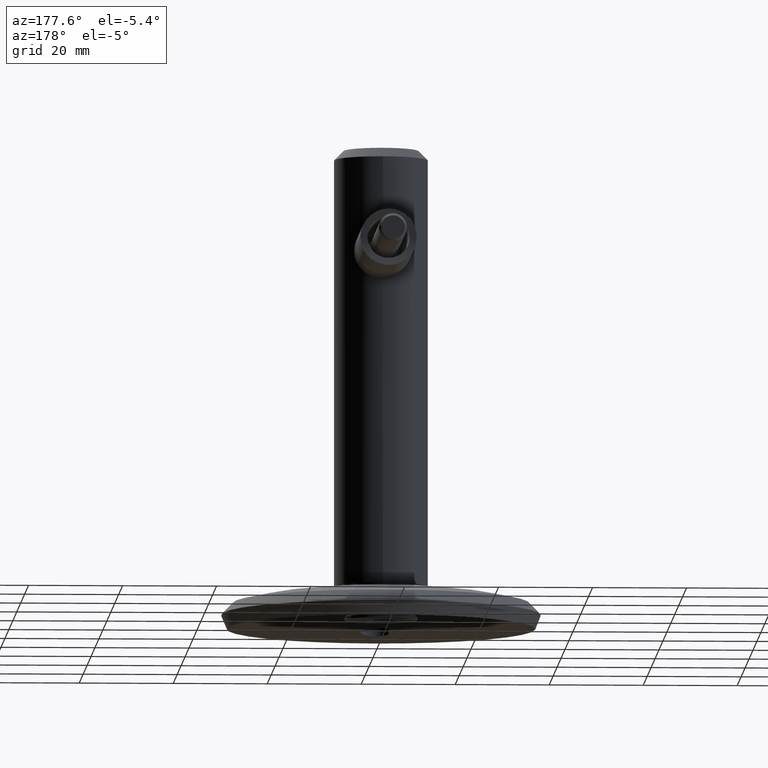
[diagram: clean part render]
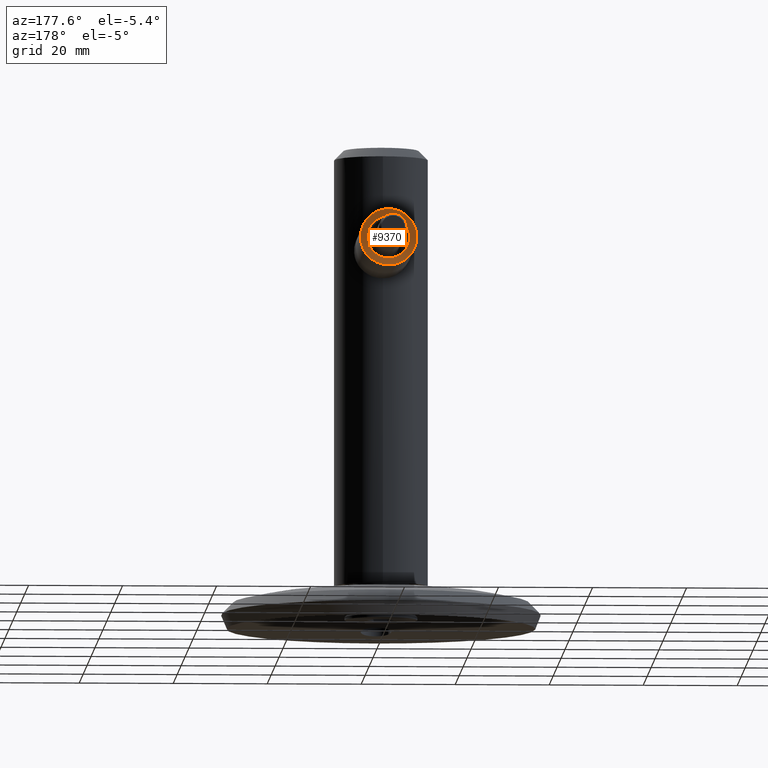
[diagram: same view with one face highlighted and labeled with its STEP entity id]
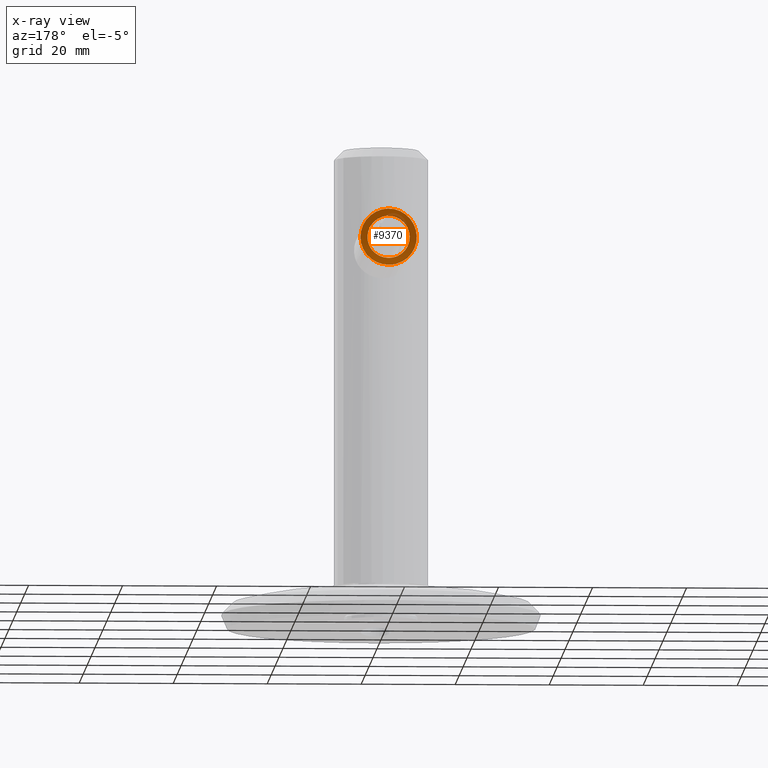
[diagram: x-ray of the same camera — body ghosted, the highlighted face saturated]
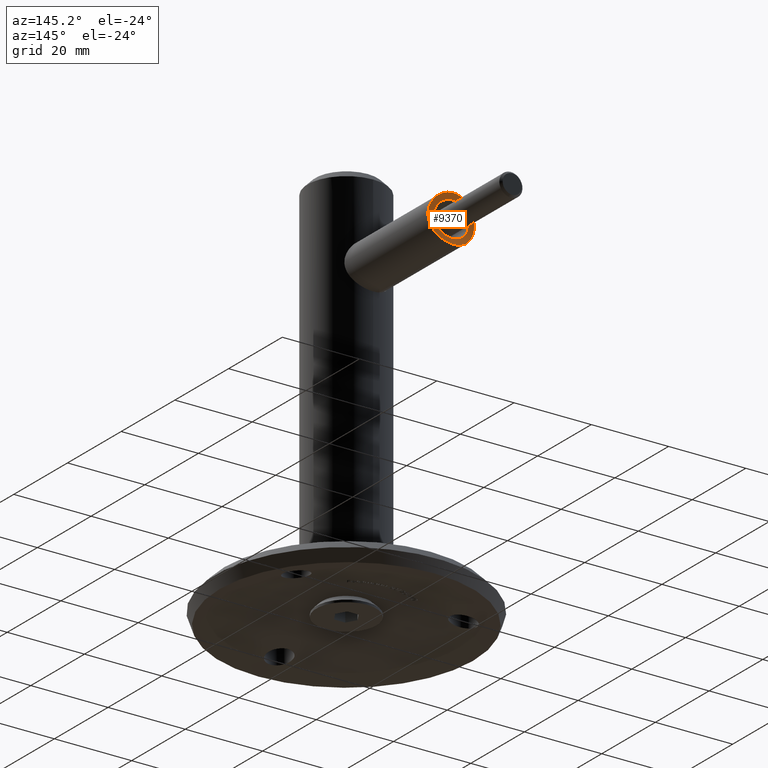
[diagram: same view with one face highlighted and labeled with its STEP entity id]
A machine part, auxiliary view. The second image highlights one B-rep face of the part: STEP entity #9370.
The next image is the same camera in x-ray: the body ghosted, the highlighted face saturated — about 6% of this face is hidden behind the body in this view.
A second angle (auxiliary view) of the same face is appended — the face is thin or edge-on in the first view.
In plain terms, the highlighted cylindrical surface (partial cylindrical patch) has radius 21.2 mm, axis along (1, 0, 0).
Its self-contained STEP definition (entity closure, byte-faithful):
#38 = CARTESIAN_POINT ( 'NONE',  ( -5.386833150024099126, 39.16582833236981998, 2.671900972921422035 ) ) ;
#90 = CARTESIAN_POINT ( 'NONE',  ( 2.664835474612384125, 39.69604372673916259, 5.389994015634830049 ) ) ;
#139 = CARTESIAN_POINT ( 'NONE',  ( 1.567503375131521270, 39.81010397402161516, 5.805055781419407701 ) ) ;
#313 = CARTESIAN_POINT ( 'NONE',  ( -1.946153451610276974, 39.77700943093032038, -5.689094273853587680 ) ) ;
#477 = CARTESIAN_POINT ( 'NONE',  ( -4.065758146820641628E-16, 39.86677595657786100, -6.000000000000005329 ) ) ;
#527 = VERTEX_POINT ( 'NONE', #1968 ) ;
#633 = CARTESIAN_POINT ( 'NONE',  ( -4.470056951583079474, 39.00641058752037793, 0.5956160367557489232 ) ) ;
#682 = CARTESIAN_POINT ( 'NONE',  ( 4.044173108522785220, 39.09234638801572714, 1.995483486846971743 ) ) ;
#731 = CARTESIAN_POINT ( 'NONE',  ( 1.453675787586462542, 39.43392683436366042, 4.268893366010395596 ) ) ;
#784 = CARTESIAN_POINT ( 'NONE',  ( 4.355573608413233266, 39.03026101547329318, 1.168656094243877952 ) ) ;
#826 = CARTESIAN_POINT ( 'NONE',  ( -4.040981637617305999, 39.09296058201051238, 2.001997529815400689 ) ) ;
#896 = CARTESIAN_POINT ( 'NONE',  ( 4.765923523361857761, 39.31678615650366737, -3.666256703641651793 ) ) ;
#995 = CARTESIAN_POINT ( 'NONE',  ( -2.977584140746407648, 39.27120856661733939, -3.386661157371494202 ) ) ;
#1007 = CARTESIAN_POINT ( 'NONE',  ( 3.657769163878172858, 39.54093268571426023, -4.760172760344627996 ) ) ;
#1052 = CARTESIAN_POINT ( 'NONE',  ( 5.844901919903467302, 39.04340544364730192, -1.369747224913459016 ) ) ;
#1106 = CARTESIAN_POINT ( 'NONE',  ( 3.011013073439819721, 39.64755117411137775, -5.204515888465341078 ) ) ;
#1156 = CARTESIAN_POINT ( 'NONE',  ( -5.999927452249055548, 39.00002053238108601, 0.1999779353303321183 ) ) ;
#1189 = CARTESIAN_POINT ( 'NONE',  ( -3.501205410230786352, 39.56816536352720703, -4.876473460912020386 ) ) ;
#1202 = CARTESIAN_POINT ( 'NONE',  ( -3.661968182206890798, 39.54213979777393462, 4.768948702656751415 ) ) ;
#1251 = CARTESIAN_POINT ( 'NONE',  ( 3.964897188831766339, 39.48559125265645520, 4.520324241424016343 ) ) ;
#1386 = ORIENTED_EDGE ( 'NONE', *, *, #14213, .T. ) ;
#1842 = CARTESIAN_POINT ( 'NONE',  ( -2.745546025396499612, 39.30337448249075294, 3.577524047811153629 ) ) ;
#1887 = CARTESIAN_POINT ( 'NONE',  ( 4.043481022426031579, 39.09247524003055219, -1.996518695419063461 ) ) ;
#1933 = CARTESIAN_POINT ( 'NONE',  ( -2.255951921952016548, 39.36204774658489214, 3.904789650682687796 ) ) ;
#1968 = CARTESIAN_POINT ( 'NONE',  ( 0.000000000000000000, 39.86677595657786100, -6.000000000000005329 ) ) ;
#2147 = CARTESIAN_POINT ( 'NONE',  ( 3.498965885800042308, 39.56854342216529830, -4.878066632430919647 ) ) ;
#2195 = CARTESIAN_POINT ( 'NONE',  ( 5.961138535017029838, 39.01109649585257699, -0.7881440351434979563 ) ) ;
#2249 = CARTESIAN_POINT ( 'NONE',  ( 4.761943770666029252, 39.31695757805032798, 3.655430837228719199 ) ) ;
#2298 = CARTESIAN_POINT ( 'NONE',  ( -3.962704692263843587, 39.48476583380182348, -4.509470939277636425 ) ) ;
#2347 = CARTESIAN_POINT ( 'NONE',  ( -5.201538773815626016, 39.21305920851091287, 3.015902784871267173 ) ) ;
#2405 = CARTESIAN_POINT ( 'NONE',  ( -5.206670629820550289, 39.21181039528246970, -3.007664344769980236 ) ) ;
#2445 = CARTESIAN_POINT ( 'NONE',  ( -3.012515206503591614, 39.64733855584797340, -5.203698981399575985 ) ) ;
#2819 = DIRECTION ( 'NONE',  ( 0.000000000000000000, 0.000000000000000000, -1.000000000000000000 ) ) ;
#3003 = CARTESIAN_POINT ( 'NONE',  ( -1.168618958941590291, 39.45221145695396103, 4.355775664247618195 ) ) ;
#3045 = CARTESIAN_POINT ( 'NONE',  ( -0.5852047606091206333, 39.47688431322175973, 4.471687298616700446 ) ) ;
#3091 = CARTESIAN_POINT ( 'NONE',  ( -3.386778113024775827, 39.20909344270816632, 2.977546186794058691 ) ) ;
#3143 = CARTESIAN_POINT ( 'NONE',  ( 3.389231286189790193, 39.20869040857512289, -2.974680724035942081 ) ) ;
#3247 = VERTEX_POINT ( 'NONE', #12264 ) ;
#3372 = CARTESIAN_POINT ( 'NONE',  ( 1.367236165430297135, 39.82176537013745588, -5.845438576508479755 ) ) ;
#3472 = CARTESIAN_POINT ( 'NONE',  ( -4.876396344112010617, 39.29047679053014264, 3.501239423540820184 ) ) ;
#3527 = CARTESIAN_POINT ( 'NONE',  ( -5.961545238840422201, 39.01097978293365998, -0.7842338684864926801 ) ) ;
#3580 = CARTESIAN_POINT ( 'NONE',  ( -0.3901985286802360786, 39.86682594959467707, 6.000169419885856392 ) ) ;
#4174 = AXIS2_PLACEMENT_3D ( 'NONE', #11864, #6354, #2819 ) ;
#4175 = CARTESIAN_POINT ( 'NONE',  ( -8.131516293641283255E-17, 39.48309868730365224, -4.500000000000003553 ) ) ;
#4227 = CARTESIAN_POINT ( 'NONE',  ( 1.453748758589291867, 39.43392733268055395, -4.268901780199063190 ) ) ;
#4282 = B_SPLINE_CURVE_WITH_KNOTS ( 'NONE', 3,
 ( #4175, #5253, #12274, #12228, #4227, #5301, #6486, #9967, #8866, #3143, #13411, #8811, #1887, #14591, #6583, #7644, #13362, #5349, #6532, #784, #14640, #682, #13464, #7692, #5452, #7787, #5399, #14683, #13516, #731, #6440, #6631, #8910, #10023, #3045, #3003, #12324, #7735, #1933, #1842, #11134, #3091, #13566, #14736, #826, #8960, #10132, #633, #13763, #13716, #5714, #6780, #11395, #4322, #4379, #14888, #5502, #995, #7837, #5607, #9212, #7887, #9111, #4486, #14834, #13612 ),
 .UNSPECIFIED., .T., .F.,
 ( 4, 2, 2, 2, 2, 2, 2, 2, 2, 2, 2, 2, 2, 2, 2, 2, 2, 2, 2, 2, 2, 2, 2, 2, 2, 2, 2, 2, 2, 2, 2, 2, 4 ),
 ( 0.000000000000000000, 0.0008817094677355862085, 0.001763418935471172417, 0.002645128403206759276, 0.003526837870942346569, 0.004408547338677933428, 0.005290256806413520287, 0.006171966274149107146, 0.007053675741884694872, 0.007935385209620282598, 0.008817094677355868590, 0.009698804145091454582, 0.01058051361282704057, 0.01146222308056262656, 0.01234393254829821256, 0.01322564201603380028, 0.01410735148376938627, 0.01498906095150497227, 0.01587077041924055826, 0.01675247988697614598, 0.01763418935471173024, 0.01851589882244731797, 0.01939760829018290569, 0.02027931775791848995, 0.02116102722565407421, 0.02204273669338966193, 0.02292444616112524619, 0.02380615562886083392, 0.02468786509659642164, 0.02556957456433200590, 0.02645128403206759363, 0.02733299349980317788, 0.02821470296753876561 ),
 .UNSPECIFIED. ) ;
#4322 = CARTESIAN_POINT ( 'NONE',  ( -4.044557272946057935, 39.09227034951176449, -1.994516712157173854 ) ) ;
#4379 = CARTESIAN_POINT ( 'NONE',  ( -3.906554296346622213, 39.11860398307728559, -2.252921507247926058 ) ) ;
#4391 = CARTESIAN_POINT ( 'NONE',  ( 6.000251675647406024, 38.99992877105675149, 0.3897490360429158862 ) ) ;
#4486 = CARTESIAN_POINT ( 'NONE',  ( -0.5924246279008271721, 39.47665958855392176, -4.470647371571142337 ) ) ;
#4545 = CARTESIAN_POINT ( 'NONE',  ( 5.692795006294950610, 39.08539385714366432, 1.935948924808809091 ) ) ;
#4649 = CARTESIAN_POINT ( 'NONE',  ( 1.941559548024174298, 39.77745049638600250, 5.690670445282177248 ) ) ;
#4698 = CARTESIAN_POINT ( 'NONE',  ( -5.807924154963832741, 39.05368734000375497, -1.556618580580950040 ) ) ;
#4749 = CARTESIAN_POINT ( 'NONE',  ( -5.989922815101413001, 39.00285822588044482, 0.3999026621498756318 ) ) ;
#5086 = CARTESIAN_POINT ( 'NONE',  ( -0.7909221023866750411, 39.85505131491337494, -5.960665220070608505 ) ) ;
#5253 = CARTESIAN_POINT ( 'NONE',  ( 0.2982032509098329620, 39.48309868730363803, -4.500000000000003553 ) ) ;
#5301 = CARTESIAN_POINT ( 'NONE',  ( 1.998257267680176863, 39.38871890826690247, -4.042755960263986204 ) ) ;
#5315 = FACE_BOUND ( 'NONE', #6235, .T. ) ;
#5349 = CARTESIAN_POINT ( 'NONE',  ( 4.500175659676059148, 38.99996271375440671, 0.2917156617902770810 ) ) ;
#5399 = CARTESIAN_POINT ( 'NONE',  ( 2.747271619917183383, 39.30312980005171397, 3.576060110211404908 ) ) ;
#5452 = CARTESIAN_POINT ( 'NONE',  ( 3.391399716574960088, 39.20836010529126270, 2.972497360413885570 ) ) ;
#5502 = CARTESIAN_POINT ( 'NONE',  ( -3.390774033795230125, 39.20843855033488978, -2.972899689160968695 ) ) ;
#5571 = CARTESIAN_POINT ( 'NONE',  ( 5.806750453888356311, 39.05401038843587713, 1.560857445958442113 ) ) ;
#5607 = CARTESIAN_POINT ( 'NONE',  ( -2.258545998574227998, 39.36178198021350738, -3.903425397464452384 ) ) ;
#5621 = CARTESIAN_POINT ( 'NONE',  ( 0.3985892450475845838, 39.86677595657786100, -6.000000000000006217 ) ) ;
#5714 = CARTESIAN_POINT ( 'NONE',  ( -4.471259367037887067, 39.00615588852156179, -0.5868292498254027434 ) ) ;
#5725 = CARTESIAN_POINT ( 'NONE',  ( 5.195449595516763885, 39.21370301654191337, 3.007612715470314946 ) ) ;
#5822 = CARTESIAN_POINT ( 'NONE',  ( -1.562611765488401527, 39.81053209538111304, 5.806559744401100787 ) ) ;
#5876 = CARTESIAN_POINT ( 'NONE',  ( -2.660947525847901840, 39.69654741239466489, 5.391900104547988626 ) ) ;
#5931 = CARTESIAN_POINT ( 'NONE',  ( -4.768297944891230600, 39.31624197785775010, -3.663167832216072117 ) ) ;
#6235 = EDGE_LOOP ( 'NONE', ( #1386 ) ) ;
#6354 = DIRECTION ( 'NONE',  ( 1.000000000000000000, -0.000000000000000000, -0.000000000000000000 ) ) ;
#6440 = CARTESIAN_POINT ( 'NONE',  ( 1.173196981791356341, 39.45191878165975652, 4.354381214337445627 ) ) ;
#6486 = CARTESIAN_POINT ( 'NONE',  ( 2.256375760188435553, 39.36199552170818805, -3.904494616226115600 ) ) ;
#6532 = CARTESIAN_POINT ( 'NONE',  ( 4.470756276366601334, 39.00626297942346810, 0.5908611023310651467 ) ) ;
#6583 = CARTESIAN_POINT ( 'NONE',  ( 4.355089436769809197, 39.03036162051250102, -1.170906576578577107 ) ) ;
#6631 = CARTESIAN_POINT ( 'NONE',  ( 0.5946852359434440238, 39.47658006952983101, 4.470276992313794828 ) ) ;
#6780 = CARTESIAN_POINT ( 'NONE',  ( -4.356816501605227820, 39.03000430035508828, -1.163906726123315138 ) ) ;
#6790 = CARTESIAN_POINT ( 'NONE',  ( 0.7900868887068148716, 39.85505751095912075, -5.960680350720851450 ) ) ;
#6944 = CARTESIAN_POINT ( 'NONE',  ( -5.691438736089949657, 39.08576590913602189, 1.940245167145599803 ) ) ;
#6998 = CARTESIAN_POINT ( 'NONE',  ( -1.937831060823399953, 39.77780336258718563, 5.691927551581161815 ) ) ;
#7049 = CARTESIAN_POINT ( 'NONE',  ( -5.691337181999868378, 39.08577921318724435, -1.939596555399011990 ) ) ;
#7100 = CARTESIAN_POINT ( 'NONE',  ( -4.519492598268759487, 39.37229378453882589, -3.965547715450232769 ) ) ;
#7644 = CARTESIAN_POINT ( 'NONE',  ( 4.471033629697963363, 39.00620546400676147, -0.5896477723597348675 ) ) ;
#7692 = CARTESIAN_POINT ( 'NONE',  ( 3.578368755296395420, 39.17693876212043591, 2.744252924424513296 ) ) ;
#7735 = CARTESIAN_POINT ( 'NONE',  ( -1.993030096515674199, 39.38920328412472571, 4.045224293864610132 ) ) ;
#7787 = CARTESIAN_POINT ( 'NONE',  ( 2.973533953015905507, 39.27180711095002863, 3.390490882676703954 ) ) ;
#7837 = CARTESIAN_POINT ( 'NONE',  ( -2.750775209726284753, 39.30270198166939366, -3.573652977948684750 ) ) ;
#7846 = CARTESIAN_POINT ( 'NONE',  ( 5.681128042610279927, 39.08810395496703194, -1.939990309476925079 ) ) ;
#7887 = CARTESIAN_POINT ( 'NONE',  ( -1.458827201416411867, 39.43354978585517046, -4.267053163971541885 ) ) ;
#7903 = CARTESIAN_POINT ( 'NONE',  ( 5.796107268626355058, 39.05687349871904246, -1.563303799001977357 ) ) ;
#8002 = CARTESIAN_POINT ( 'NONE',  ( 5.614775507649731878, 39.10591392659193843, -2.124247630394300757 ) ) ;
#8054 = CARTESIAN_POINT ( 'NONE',  ( 5.094890828735287869, 39.23844391682747812, 3.174911366692543258 ) ) ;
#8108 = CARTESIAN_POINT ( 'NONE',  ( -5.921367764825414604, 39.02215249593837854, 0.9878383440947947625 ) ) ;
#8159 = CARTESIAN_POINT ( 'NONE',  ( -5.805718344292519539, 39.05429404609162702, 1.564390522937072925 ) ) ;
#8208 = CARTESIAN_POINT ( 'NONE',  ( 0.7893478687381466630, 39.85241174253837926, 5.951139941781342202 ) ) ;
#8811 = CARTESIAN_POINT ( 'NONE',  ( 3.904223466443575763, 39.11904290633914627, -2.257104260678528984 ) ) ;
#8866 = CARTESIAN_POINT ( 'NONE',  ( 2.975482920270869247, 39.27151012947702213, -3.388527041712230403 ) ) ;
#8892 = CARTESIAN_POINT ( 'NONE',  ( -2.669010410636402764, 39.69549690679677667, -5.387920780962053513 ) ) ;
#8910 = CARTESIAN_POINT ( 'NONE',  ( 0.2959807551140146709, 39.48307226268449455, 4.499878347494208342 ) ) ;
#8960 = CARTESIAN_POINT ( 'NONE',  ( -4.268306002802728649, 39.04826209195650932, 1.455709645288303600 ) ) ;
#9111 = CARTESIAN_POINT ( 'NONE',  ( -1.173051440158819680, 39.45194176434362276, -4.354492528345951463 ) ) ;
#9122 = CARTESIAN_POINT ( 'NONE',  ( 2.667242644977275923, 39.69575009362240792, -5.388893713550922726 ) ) ;
#9174 = CARTESIAN_POINT ( 'NONE',  ( 2.123116885718334679, 39.75702698885454112, -5.615243929284035929 ) ) ;
#9212 = CARTESIAN_POINT ( 'NONE',  ( -2.000044702424379039, 39.38852584498976483, -4.041749707250088086 ) ) ;
#9224 = CARTESIAN_POINT ( 'NONE',  ( 4.878137923113206931, 39.29007052933531696, 3.498820536433562278 ) ) ;
#9275 = CARTESIAN_POINT ( 'NONE',  ( -4.106992825656436530, 39.45658482113101684, -4.378407865575820068 ) ) ;
#9325 = CARTESIAN_POINT ( 'NONE',  ( 0.3956218705733524077, 39.86387956119002496, 5.990210346896905236 ) ) ;
#9368 = CARTESIAN_POINT ( 'NONE',  ( -5.390943988667642905, 39.16476105189169488, -2.662907551526740413 ) ) ;
#9370 = ADVANCED_FACE ( 'NONE', ( #5315, #13848 ), #13833, .F. ) ;
#9806 = CARTESIAN_POINT ( 'NONE',  ( -0.3985892450475783666, 39.86677595657786100, -6.000000000000004441 ) ) ;
#9967 = CARTESIAN_POINT ( 'NONE',  ( 2.744874029177291064, 39.30345644604841482, -3.577984955705190373 ) ) ;
#10023 = CARTESIAN_POINT ( 'NONE',  ( -0.2922699905332738490, 39.48312494575688447, 4.500120887518330726 ) ) ;
#10132 = CARTESIAN_POINT ( 'NONE',  ( -4.354799264265114545, 39.03042041828852859, 1.171277499823530244 ) ) ;
#10299 = CARTESIAN_POINT ( 'NONE',  ( 4.518240597640136080, 39.37256728680340956, -3.966981472210573401 ) ) ;
#10348 = CARTESIAN_POINT ( 'NONE',  ( 1.557924483062337551, 39.80804861411755979, -5.797576013936588168 ) ) ;
#10401 = CARTESIAN_POINT ( 'NONE',  ( 4.513671942983465080, 39.37216797813942293, 3.957909634121464570 ) ) ;
#10451 = CARTESIAN_POINT ( 'NONE',  ( -3.660191764305794404, 39.54050092974598840, -4.758293063566747527 ) ) ;
#10497 = CARTESIAN_POINT ( 'NONE',  ( -6.000143897955428685, 38.99995927416605923, -0.3933899227371496776 ) ) ;
#10549 = CARTESIAN_POINT ( 'NONE',  ( -3.962785689061535166, 39.48599111327883548, 4.522115018280371324 ) ) ;
#11134 = CARTESIAN_POINT ( 'NONE',  ( -2.971569714913644411, 39.27207323501234981, 3.392023099974932343 ) ) ;
#11143 = ORIENTED_EDGE ( 'NONE', *, *, #13780, .F. ) ;
#11352 = CARTESIAN_POINT ( 'NONE',  ( 5.389766625641879472, 39.16506150798010566, -2.665134838478793622 ) ) ;
#11395 = CARTESIAN_POINT ( 'NONE',  ( -4.269799286025552476, 39.04795533744069047, -1.450983978640290939 ) ) ;
#11449 = CARTESIAN_POINT ( 'NONE',  ( 5.204722612134082382, 39.21229572173453448, -3.011034336946596834 ) ) ;
#11504 = CARTESIAN_POINT ( 'NONE',  ( 5.999745847056054515, 39.00007193006484130, -0.3974597500873098266 ) ) ;
#11549 = CARTESIAN_POINT ( 'NONE',  ( 4.380825007029515383, 39.40064405442517170, 4.104486264952998731 ) ) ;
#11592 = CARTESIAN_POINT ( 'NONE',  ( 3.664215921708836365, 39.54172738377531715, 4.767146937731932432 ) ) ;
#11642 = CARTESIAN_POINT ( 'NONE',  ( -4.378212937087820222, 39.40119301599449386, 4.107255792072586509 ) ) ;
#11697 = CARTESIAN_POINT ( 'NONE',  ( -5.950597231365541973, 39.01393732966914030, 0.7934040963668894664 ) ) ;
#11864 = CARTESIAN_POINT ( 'NONE',  ( -6.000000000000000888, 60.19999999999999574, 0.000000000000000000 ) ) ;
#12228 = CARTESIAN_POINT ( 'NONE',  ( 1.167499977431969649, 39.45222447950704492, -4.355830153584017594 ) ) ;
#12264 = CARTESIAN_POINT ( 'NONE',  ( 0.000000000000000000, 39.48309868730364514, -4.500000000000003553 ) ) ;
#12274 = CARTESIAN_POINT ( 'NONE',  ( 0.5912484505238813082, 39.47666273059019915, -4.470652949394362530 ) ) ;
#12324 = CARTESIAN_POINT ( 'NONE',  ( -1.451134186473053589, 39.43409329186373213, 4.269685951699364601 ) ) ;
#12492 = CARTESIAN_POINT ( 'NONE',  ( 5.960796601360714320, 39.01119111555727414, 0.7896395871175068137 ) ) ;
#12647 = CARTESIAN_POINT ( 'NONE',  ( 5.465773555087816149, 39.14508727276316336, 2.482795350062896755 ) ) ;
#12751 = CARTESIAN_POINT ( 'NONE',  ( -4.760085766081402880, 39.31738281500876298, 3.657866959875105906 ) ) ;
#12786 = EDGE_LOOP ( 'NONE', ( #11143 ) ) ;
#12808 = CARTESIAN_POINT ( 'NONE',  ( -4.511241239789248070, 39.37269624944178759, 3.960695604691363947 ) ) ;
#12856 = CARTESIAN_POINT ( 'NONE',  ( 0.9871179606022800757, 39.84374542928060237, 5.921531304989133382 ) ) ;
#13362 = CARTESIAN_POINT ( 'NONE',  ( 4.499822723619053555, 39.00003762941401675, -0.2971101669014105107 ) ) ;
#13411 = CARTESIAN_POINT ( 'NONE',  ( 3.575207192753679042, 39.17749069259429007, -2.748704067080379065 ) ) ;
#13464 = CARTESIAN_POINT ( 'NONE',  ( 3.903665770207139118, 39.11913219745829906, 2.257662644552343778 ) ) ;
#13516 = CARTESIAN_POINT ( 'NONE',  ( 1.997321301846005870, 39.38880316252922142, 4.043183335315733373 ) ) ;
#13566 = CARTESIAN_POINT ( 'NONE',  ( -3.576436776847847110, 39.17726980377938162, 2.746797827466779029 ) ) ;
#13612 = CARTESIAN_POINT ( 'NONE',  ( -8.131516293641283255E-17, 39.48309868730365224, -4.500000000000003553 ) ) ;
#13678 = CARTESIAN_POINT ( 'NONE',  ( 5.380694415465658409, 39.16707730792103348, 2.662059043896415123 ) ) ;
#13716 = CARTESIAN_POINT ( 'NONE',  ( -4.500195192385930909, 38.99995856766256708, -0.2940945722077192293 ) ) ;
#13729 = B_SPLINE_CURVE_WITH_KNOTS ( 'NONE', 3,
 ( #13830, #5621, #6790, #3372, #10348, #14900, #9174, #9122, #1106, #2147, #1007, #14803, #14845, #10299, #896, #11449, #11352, #8002, #7846, #7903, #1052, #2195, #11504, #4391, #12492, #5571, #4545, #12647, #13678, #5725, #8054, #9224, #2249, #10401, #11549, #1251, #11592, #13935, #90, #4649, #139, #12856, #8208, #9325, #13985, #3580, #14039, #5822, #6998, #5876, #15051, #1202, #10549, #11642, #12808, #12751, #3472, #2347, #38, #6944, #8159, #8108, #11697, #4749, #1156, #10497, #3527, #4698, #7049, #9368, #2405, #5931, #7100, #9275, #2298, #10451, #1189, #2445, #8892, #313, #14305, #5086, #9806, #477 ),
 .UNSPECIFIED., .T., .F.,
 ( 4, 2, 2, 2, 2, 2, 2, 2, 2, 2, 2, 2, 2, 2, 2, 2, 2, 2, 2, 2, 2, 2, 2, 2, 2, 2, 2, 2, 2, 2, 2, 2, 2, 2, 2, 2, 2, 2, 2, 2, 2, 4 ),
 ( 0.000000000000000000, 0.001178294353801495565, 0.001767441530702242372, 0.002356588707602989396, 0.003534883061404480407, 0.004124030238305224395, 0.004713177415205969251, 0.005891471769007461563, 0.007069766122808953876, 0.007658913299709699599, 0.008248060476610445321, 0.009426354830411935032, 0.01060464918421342474, 0.01178294353801491445, 0.01237209071491566365, 0.01296123789181641110, 0.01355038506871715856, 0.01413953224561790602, 0.01531782659941939920, 0.01649612095322089064, 0.01767441530702238556, 0.01826356248392313475, 0.01885270966082388047, 0.02003100401462537539, 0.02120929836842687030, 0.02238759272222836869, 0.02356588707602986360, 0.02415503425293061279, 0.02474418142983135852, 0.02592247578363284649, 0.02710077013743433794, 0.02768991731433508019, 0.02827906449123582591, 0.02945735884503731042, 0.03063565319883879839, 0.03181394755264028290, 0.03299224190644177435, 0.03358138908334251660, 0.03417053626024326579, 0.03534883061404474336, 0.03652712496784622787, 0.03770541932164770543 ),
 .UNSPECIFIED. ) ;
#13763 = CARTESIAN_POINT ( 'NONE',  ( -4.499802845217216074, 39.00004184888386760, 0.3000378995236015478 ) ) ;
#13780 = EDGE_CURVE ( 'NONE', #527, #527, #13729, .T. ) ;
#13830 = CARTESIAN_POINT ( 'NONE',  ( -4.065758146820641628E-16, 39.86677595657786100, -6.000000000000005329 ) ) ;
#13833 = CYLINDRICAL_SURFACE ( 'NONE', #4174, 21.19999999999999574 ) ;
#13848 = FACE_OUTER_BOUND ( 'NONE', #12786, .T. ) ;
#13935 = CARTESIAN_POINT ( 'NONE',  ( 3.016110755655896813, 39.64678435729003780, 5.201465577743286772 ) ) ;
#13985 = CARTESIAN_POINT ( 'NONE',  ( 0.1989940060684033396, 39.86675071139577398, 5.999914447334082190 ) ) ;
#14039 = CARTESIAN_POINT ( 'NONE',  ( -0.7832332020948788998, 39.85541595036397666, 5.961915576899625258 ) ) ;
#14213 = EDGE_CURVE ( 'NONE', #3247, #3247, #4282, .T. ) ;
#14305 = CARTESIAN_POINT ( 'NONE',  ( -1.563240252272107833, 39.81041689212141677, -5.806149115504993574 ) ) ;
#14591 = CARTESIAN_POINT ( 'NONE',  ( 4.268209328846924500, 39.04827492640706055, -1.455408810273377762 ) ) ;
#14640 = CARTESIAN_POINT ( 'NONE',  ( 4.270360954902275630, 39.04784437564417487, 1.449588835782035678 ) ) ;
#14683 = CARTESIAN_POINT ( 'NONE',  ( 2.260777344772161079, 39.36150684424327295, 3.901870456949140920 ) ) ;
#14736 = CARTESIAN_POINT ( 'NONE',  ( -3.902338078845280833, 39.11938028980406301, 2.259990230545288359 ) ) ;
#14803 = CARTESIAN_POINT ( 'NONE',  ( 3.961035543833129502, 39.48508774772431451, -4.510955263027512707 ) ) ;
#14834 = CARTESIAN_POINT ( 'NONE',  ( -0.2982032509098331285, 39.48309868730365935, -4.500000000000003553 ) ) ;
#14845 = CARTESIAN_POINT ( 'NONE',  ( 4.105525896893261972, 39.45687567599317447, -4.379785055764167545 ) ) ;
#14888 = CARTESIAN_POINT ( 'NONE',  ( -3.579420246241939552, 39.17676664137441378, -2.743095421037665904 ) ) ;
#14900 = CARTESIAN_POINT ( 'NONE',  ( 1.935861042096272522, 39.77569803876828303, -5.682557378328164432 ) ) ;
#15051 = CARTESIAN_POINT ( 'NONE',  ( -3.012068843146921360, 39.64739102004135418, 5.203875861337464492 ) ) ;